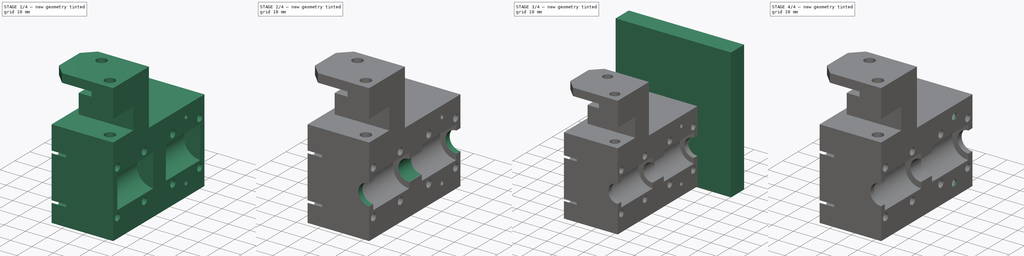
[diagram: build sequence overview — one tinted view per stage of 4, left to right]
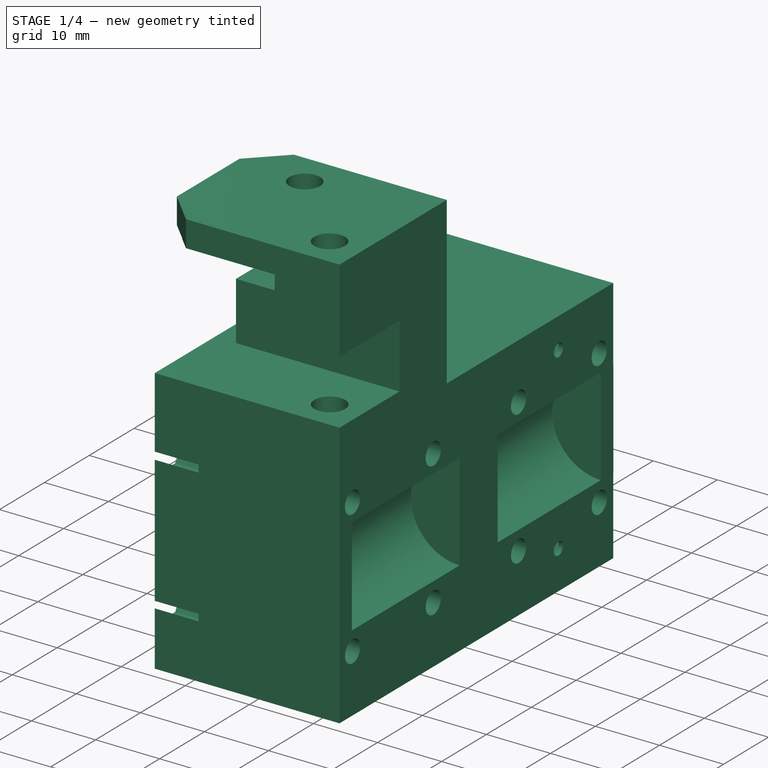
[diagram: stage 1 of 4 — iso view after this stage's code; geometry added in this stage tinted green]
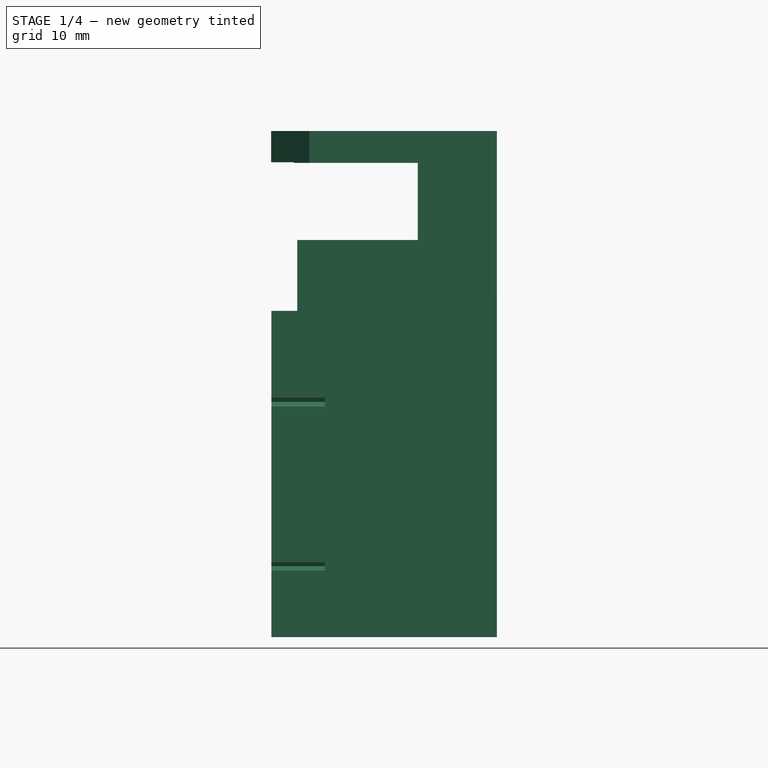
[diagram: stage 1 of 4 — front view after this stage's code; geometry added in this stage tinted green]
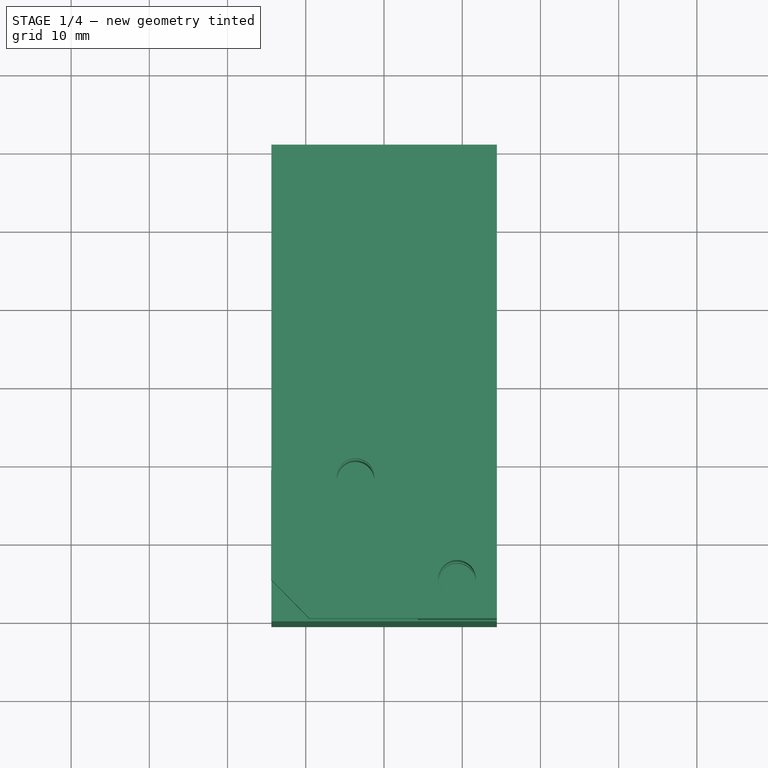
[diagram: stage 1 of 4 — top view after this stage's code; geometry added in this stage tinted green]
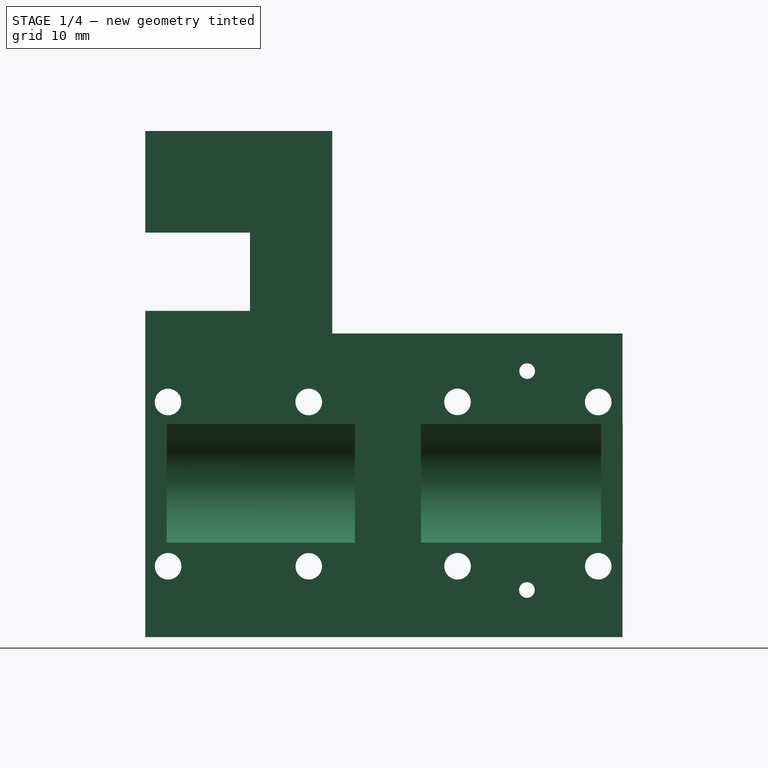
[diagram: stage 1 of 4 — right view after this stage's code; geometry added in this stage tinted green]
FCSTD DOCUMENT  (FreeCAD 1.0R38806 (Git))
Label: Y_carriage_right
License: All rights reserved
LicenseURL: http://en.wikipedia.org/wiki/All_rights_reserved
objects: PartDesign::Pocket×9, Sketcher::SketchObject×7, PartDesign::Pad×4, Part::Feature×1, PartDesign::FeatureBase×1, PartDesign::Body×1
note: 57 computed .brp shape members not serialized (recipe doc carries the construction recipe); baked Part::Feature solids carry a one-line shape summary decoded from their .brp

FEATURE [Part::Feature] Part__Feature  label="Y_carriage_right_001"
  shape: bbox 28.85 x 61 x 66.87 mm, 116 faces (baked)
FEATURE [PartDesign::FeatureBase] BaseFeature
  BaseFeature = -> Part__Feature
  Suppressed = false
FEATURE [Sketcher::SketchObject] Sketch
  ArcFitTolerance = 1e-06
  AttachmentSupport = -> [BaseFeature]
  FullyConstrained = false
  MakeInternals = false
  MapMode = 5
  Placement = pos=(-14.403,0,0) rot=(0.57735,-0.57735,-0.57735;2.0944rad)
  sketch-geometry (2):
    g0: Circle CenterX=-18.3109 CenterY=1.64536 CenterZ=0 NormalX=0 NormalY=0 NormalZ=1 AngleXU=0 Radius=1
    g1: Circle CenterX=-18.2779 CenterY=-26.3361 CenterZ=0 NormalX=0 NormalY=0 NormalZ=1 AngleXU=0 Radius=1
  constraints (2):
    c: Diameter(g0) = 2
    c: Diameter(g1) = 2
FEATURE [PartDesign::Pocket] Pocket
  BaseFeature = -> BaseFeature
  Direction = (1,0,0)
  Length = 5
  Length2 = 5
  Profile = -> Sketch
  ReferenceAxis = -> Sketch [N_Axis]
  Refine = true
  Suppressed = false
  Type = 1
FEATURE [Sketcher::SketchObject] Sketch001
  ArcFitTolerance = 1e-06
  AttachmentSupport = -> [Pocket]
  FullyConstrained = false
  MakeInternals = false
  MapMode = 5
  Placement = pos=(14.4238,0,0) rot=(0.57735,0.57735,0.57735;2.0944rad)
  sketch-geometry (12):
    g0: LineSegment StartX=-27.7506 StartY=-5.10089 StartZ=0 EndX=-30.6424 EndY=-5.10089 EndZ=0
    g1: LineSegment StartX=-30.6424 StartY=-5.10089 StartZ=0 EndX=-30.6424 EndY=-20.3024 EndZ=0
    g2: LineSegment StartX=-30.6424 StartY=-20.3024 StartZ=0 EndX=-27.7506 EndY=-20.3024 EndZ=0
    g3: LineSegment StartX=-27.7506 StartY=-20.3024 StartZ=0 EndX=-27.7506 EndY=-5.10089 EndZ=0
    g4: LineSegment StartX=-3.71419 StartY=-5.09504 StartZ=0 EndX=-3.71419 EndY=-20.3043 EndZ=0
    g5: LineSegment StartX=-3.71419 StartY=-20.3043 StartZ=0 EndX=4.74368 EndY=-20.3043 EndZ=0
    g6: LineSegment StartX=4.74368 StartY=-20.3043 StartZ=0 EndX=4.74368 EndY=-5.09504 EndZ=0
    g7: LineSegment StartX=4.74368 StartY=-5.09504 StartZ=0 EndX=-3.71419 EndY=-5.09504 EndZ=0
    g8: LineSegment StartX=27.7632 StartY=-5.09183 StartZ=0 EndX=27.7632 EndY=-20.3017 EndZ=0
    g9: LineSegment StartX=27.7632 StartY=-20.3017 StartZ=0 EndX=30.5266 EndY=-20.3017 EndZ=0
    g10: LineSegment StartX=30.5266 StartY=-20.3017 StartZ=0 EndX=30.5266 EndY=-5.09183 EndZ=0
    g11: LineSegment StartX=30.5266 StartY=-5.09183 StartZ=0 EndX=27.7632 EndY=-5.09183 EndZ=0
  constraints (24):
    c: Coincident(g0,g1)
    c: Coincident(g1,g2)
    c: Coincident(g2,g3)
    c: Coincident(g3,g0)
    c: Horizontal(g0)
    c: Horizontal(g2)
    c: Vertical(g1)
    c: Vertical(g3)
    c: Coincident(g4,g5)
    c: Coincident(g5,g6)
    c: Coincident(g6,g7)
    c: Coincident(g7,g4)
    c: Vertical(g4)
    c: Vertical(g6)
    c: Horizontal(g5)
    c: Horizontal(g7)
    c: Coincident(g8,g9)
    c: Coincident(g9,g10)
    c: Coincident(g10,g11)
    c: Coincident(g11,g8)
    c: Vertical(g8)
    c: Vertical(g10)
    c: Horizontal(g9)
    c: Horizontal(g11)
FEATURE [PartDesign::Pad] Pad
  BaseFeature = -> Pocket
  Direction = (1,0,0)
  Length = 10
  Length2 = 10
  Profile = -> Sketch001
  ReferenceAxis = -> Sketch001 [N_Axis]
  Refine = true
  Reversed = true
  Suppressed = false
  Type = 0
FEATURE [PartDesign::Pocket] Pocket001
  BaseFeature = -> Pad
  Direction = (0,0,1)
  Length = 26
  Length2 = 5
  Profile = -> Pad [Face101]
  Refine = true
  Suppressed = false
  Type = 0
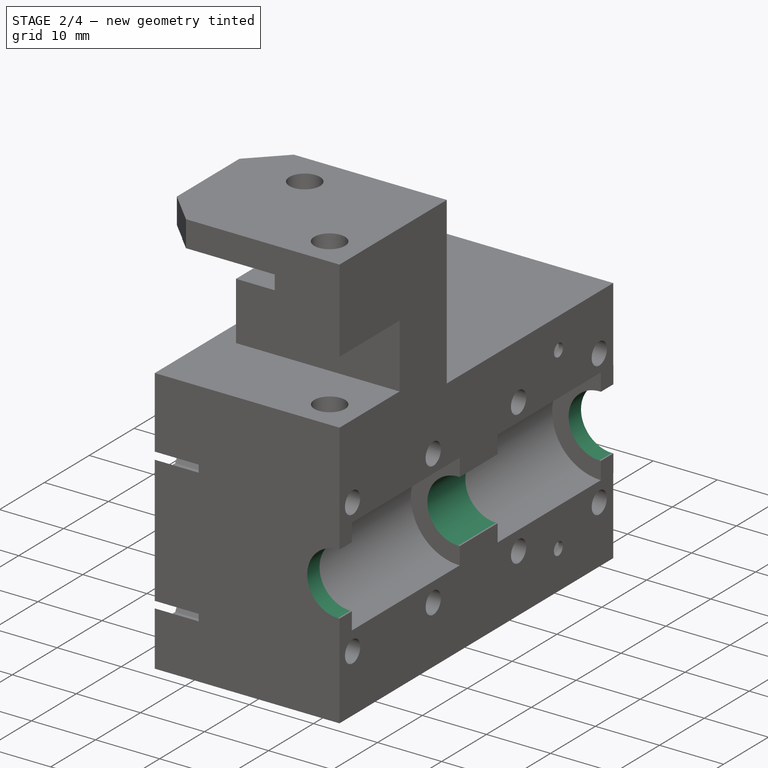
[diagram: stage 2 of 4 — iso view after this stage's code; geometry added in this stage tinted green]
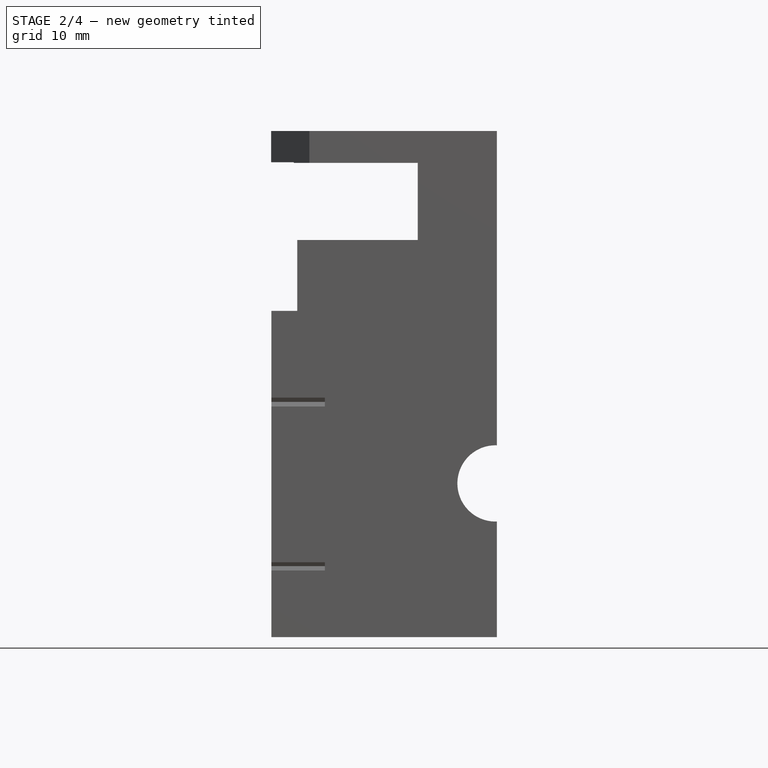
[diagram: stage 2 of 4 — front view after this stage's code; geometry added in this stage tinted green]
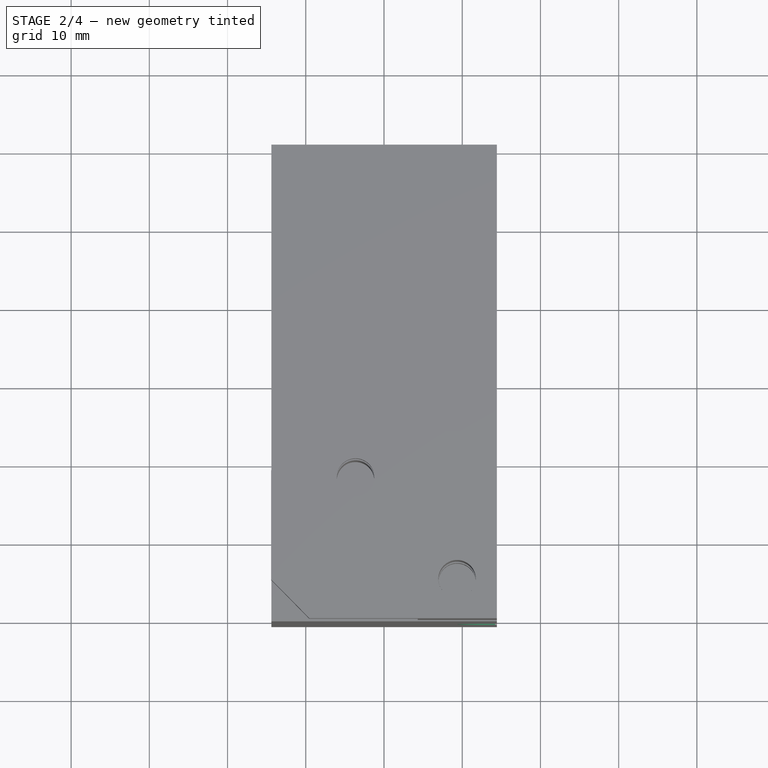
[diagram: stage 2 of 4 — top view after this stage's code; geometry added in this stage tinted green]
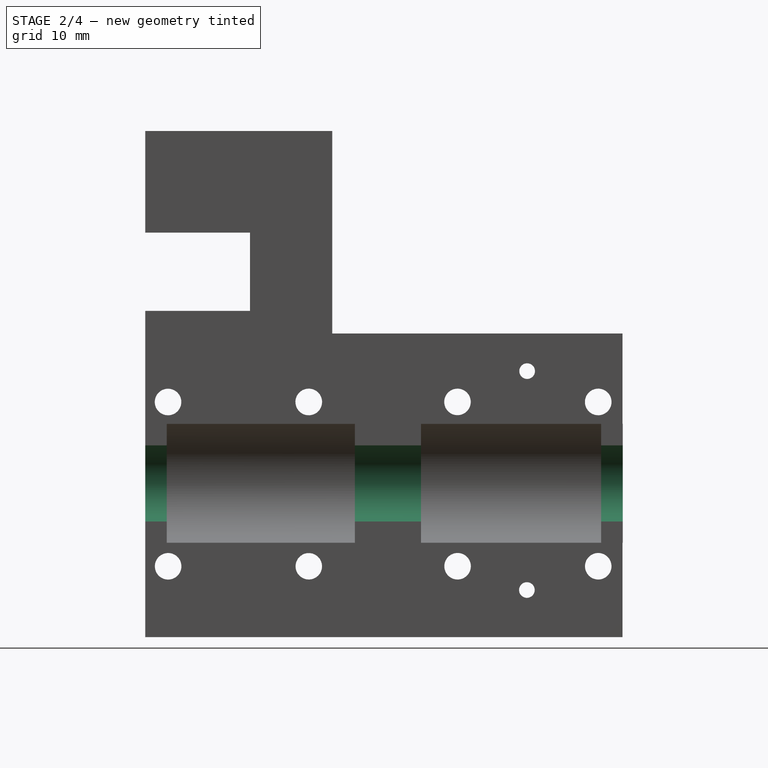
[diagram: stage 2 of 4 — right view after this stage's code; geometry added in this stage tinted green]
FEATURE [Sketcher::SketchObject] Sketch002
  ArcFitTolerance = 1e-06
  AttachmentSupport = -> [Pocket001]
  FullyConstrained = false
  MakeInternals = false
  MapMode = 5
  Placement = pos=(0,-30.5001,0) rot=(1,0,0;1.5708rad)
  sketch-geometry (1):
    g0: Circle CenterX=14.2545 CenterY=-12.7088 CenterZ=0 NormalX=0 NormalY=0 NormalZ=1 AngleXU=0 Radius=4.87299
FEATURE [PartDesign::Pocket] Pocket002
  BaseFeature = -> Pocket001
  Direction = (0,1,-2e-16)
  Length = 5
  Length2 = 5
  Profile = -> Sketch002
  ReferenceAxis = -> Sketch002 [N_Axis]
  Refine = true
  Suppressed = false
  Type = 1
FEATURE [Sketcher::SketchObject] Sketch003
  ArcFitTolerance = 1e-06
  AttachmentSupport = -> [Pocket002]
  FullyConstrained = false
  MakeInternals = false
  MapMode = 5
  Placement = pos=(0,-30.5001,0) rot=(1,0,0;1.5708rad)
  sketch-geometry (4):
    g0: LineSegment StartX=-31.2286 StartY=37.3175 StartZ=0 EndX=-31.2286 EndY=-45.1494 EndZ=0
    g1: LineSegment StartX=-31.2286 StartY=-45.1494 StartZ=0 EndX=30.6717 EndY=-45.1494 EndZ=0
    g2: LineSegment StartX=30.6717 StartY=-45.1494 StartZ=0 EndX=30.6717 EndY=37.3175 EndZ=0
    g3: LineSegment StartX=30.6717 StartY=37.3175 StartZ=0 EndX=-31.2286 EndY=37.3175 EndZ=0
  constraints (8):
    c: Coincident(g0,g1)
    c: Coincident(g1,g2)
    c: Coincident(g2,g3)
    c: Coincident(g3,g0)
    c: Vertical(g0)
    c: Vertical(g2)
    c: Horizontal(g1)
    c: Horizontal(g3)
FEATURE [PartDesign::Pad] Pad001
  BaseFeature = -> Pocket002
  Direction = (0,-1,2e-16)
  Length = 10
  Length2 = 10
  Profile = -> Sketch003
  ReferenceAxis = -> Sketch003 [N_Axis]
  Refine = true
  Suppressed = false
  Type = 0
FEATURE [PartDesign::Pocket] Pocket003
  BaseFeature = -> Pad001
  Direction = (0,1,0)
  Length = 10
  Length2 = 5
  Profile = -> Pad001 [Face133]
  Refine = true
  Suppressed = false
  Type = 0
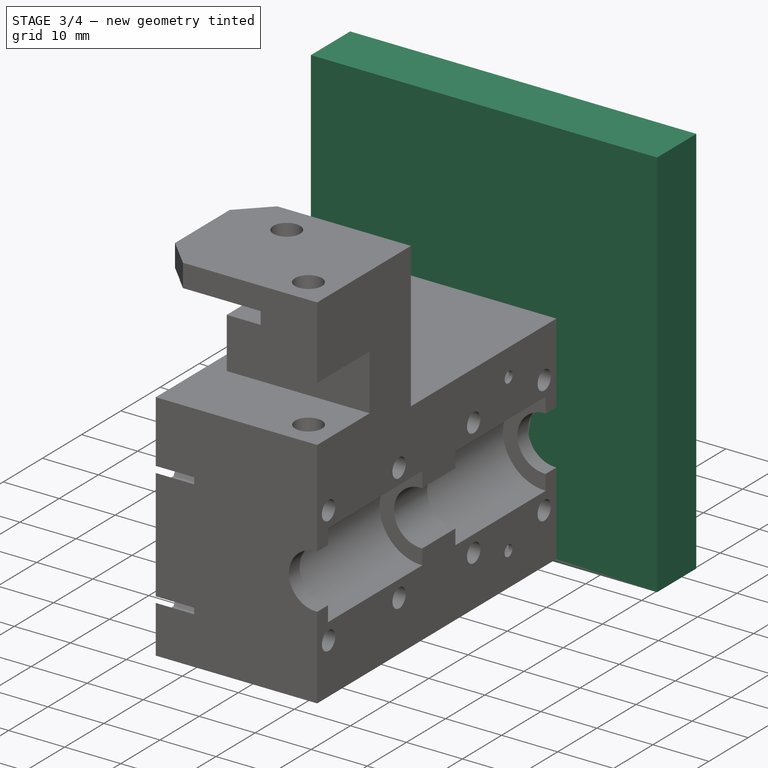
[diagram: stage 3 of 4 — iso view after this stage's code; geometry added in this stage tinted green]
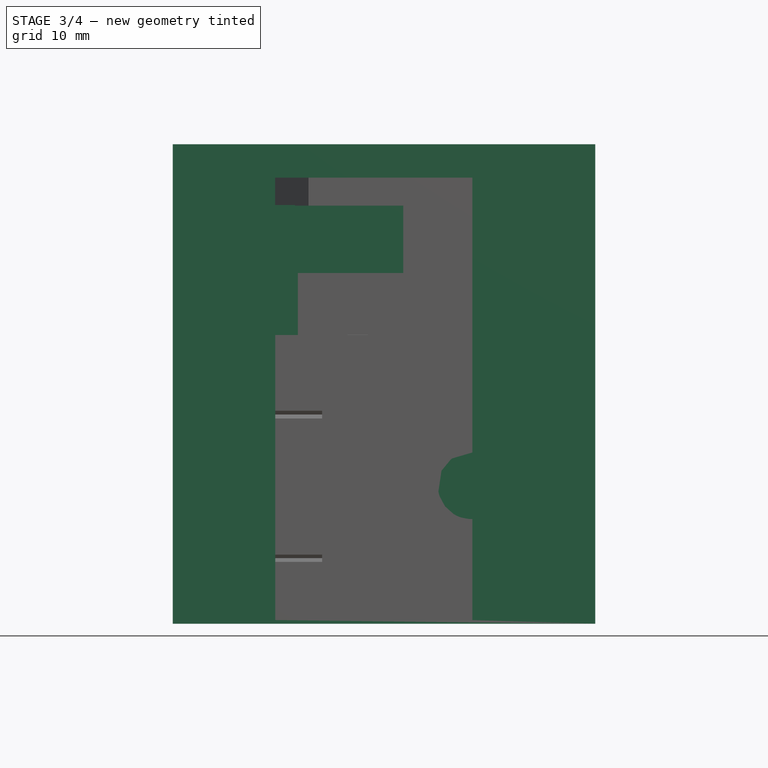
[diagram: stage 3 of 4 — front view after this stage's code; geometry added in this stage tinted green]
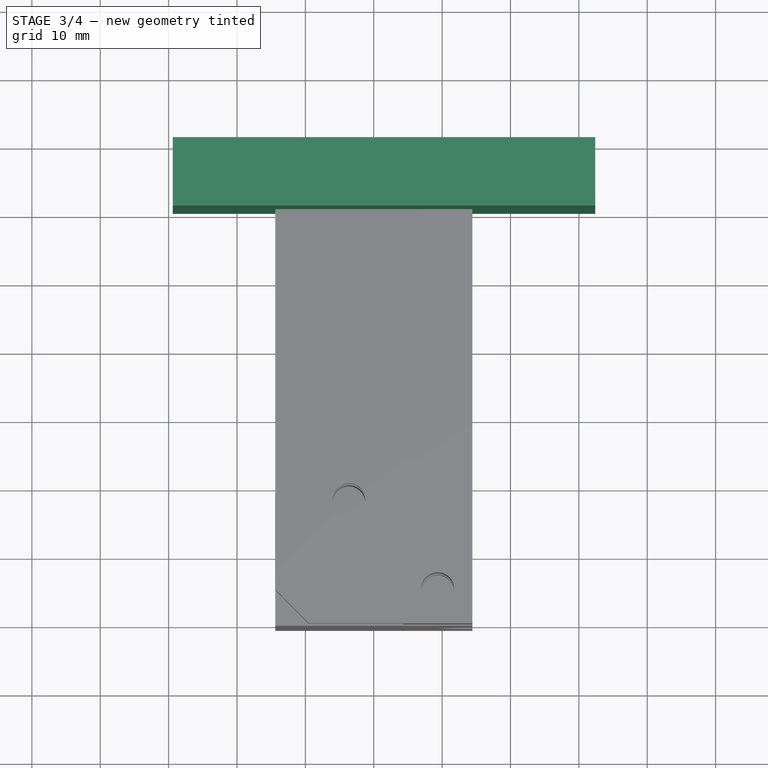
[diagram: stage 3 of 4 — top view after this stage's code; geometry added in this stage tinted green]
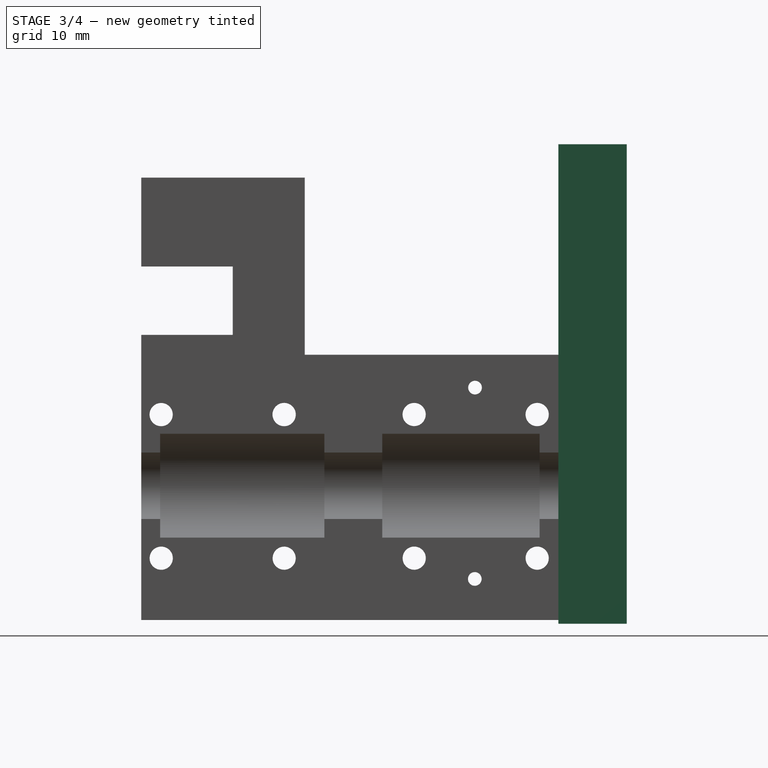
[diagram: stage 3 of 4 — right view after this stage's code; geometry added in this stage tinted green]
FEATURE [Sketcher::SketchObject] Sketch004
  ArcFitTolerance = 1e-06
  AttachmentSupport = -> [Pocket003]
  FullyConstrained = false
  MakeInternals = false
  MapMode = 5
  Placement = pos=(14.4238,0,0) rot=(0.57735,0.57735,0.57735;2.0944rad)
  sketch-geometry (4):
    g0: LineSegment StartX=-38.3028 StartY=35.3214 StartZ=0 EndX=-38.3028 EndY=-36.165 EndZ=0
    g1: LineSegment StartX=-38.3028 StartY=-36.165 StartZ=0 EndX=35.47 EndY=-36.165 EndZ=0
    g2: LineSegment StartX=35.47 StartY=-36.165 StartZ=0 EndX=35.47 EndY=35.3214 EndZ=0
    g3: LineSegment StartX=35.47 StartY=35.3214 StartZ=0 EndX=-38.3028 EndY=35.3214 EndZ=0
  constraints (8):
    c: Coincident(g0,g1)
    c: Coincident(g1,g2)
    c: Coincident(g2,g3)
    c: Coincident(g3,g0)
    c: Vertical(g0)
    c: Vertical(g2)
    c: Horizontal(g1)
    c: Horizontal(g3)
FEATURE [PartDesign::Pad] Pad002
  BaseFeature = -> Pocket003
  Direction = (1,0,0)
  Length = 10
  Length2 = 10
  Profile = -> Sketch004
  ReferenceAxis = -> Sketch004 [N_Axis]
  Refine = true
  Suppressed = false
  Type = 0
FEATURE [PartDesign::Pocket] Pocket004
  BaseFeature = -> Pad002
  Direction = (-1,0,0)
  Length = 10
  Length2 = 5
  Profile = -> Pad002 [Face140]
  Refine = true
  Suppressed = false
  Type = 0
FEATURE [Sketcher::SketchObject] Sketch005
  ArcFitTolerance = 1e-06
  AttachmentSupport = -> [Pocket004]
  FullyConstrained = false
  MakeInternals = false
  MapMode = 5
  Placement = pos=(1.4e-15,30.4999,-6e-16) rot=(0,0.707107,0.707107;3.14159rad)
  sketch-geometry (4):
    g0: LineSegment StartX=-32.3991 StartY=37.2442 StartZ=0 EndX=-32.3991 EndY=-32.8972 EndZ=0
    g1: LineSegment StartX=-32.3991 StartY=-32.8972 StartZ=0 EndX=29.4034 EndY=-32.8972 EndZ=0
    g2: LineSegment StartX=29.4034 StartY=-32.8972 StartZ=0 EndX=29.4034 EndY=37.2442 EndZ=0
    g3: LineSegment StartX=29.4034 StartY=37.2442 StartZ=0 EndX=-32.3991 EndY=37.2442 EndZ=0
  constraints (8):
    c: Coincident(g0,g1)
    c: Coincident(g1,g2)
    c: Coincident(g2,g3)
    c: Coincident(g3,g0)
    c: Vertical(g0)
    c: Vertical(g2)
    c: Horizontal(g1)
    c: Horizontal(g3)
FEATURE [PartDesign::Pad] Pad003
  BaseFeature = -> Pocket004
  Direction = (0,1,-2e-16)
  Length = 10
  Length2 = 10
  Profile = -> Sketch005
  ReferenceAxis = -> Sketch005 [N_Axis]
  Refine = true
  Suppressed = false
  Type = 0
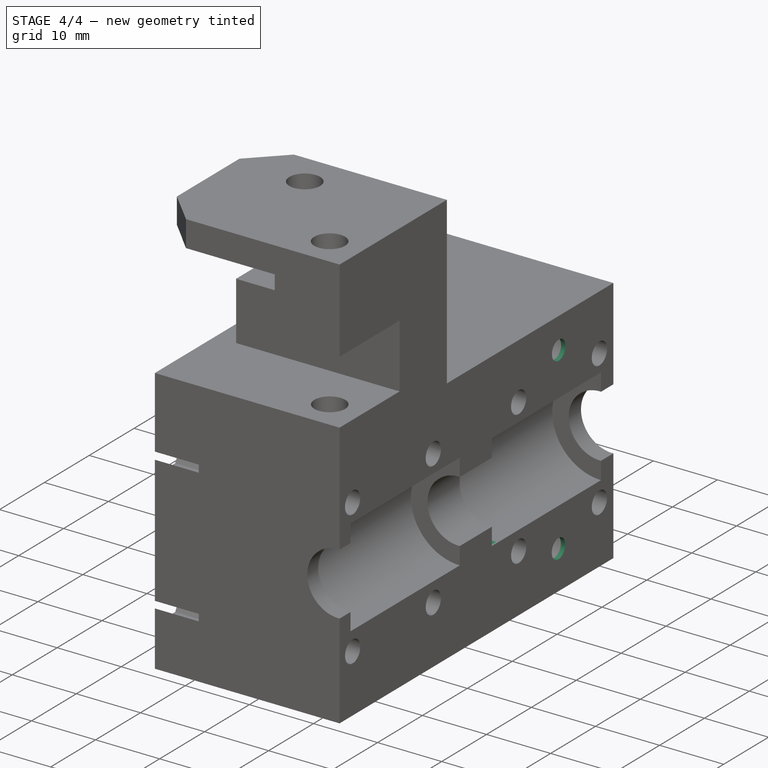
[diagram: stage 4 of 4 — iso view after this stage's code; geometry added in this stage tinted green]
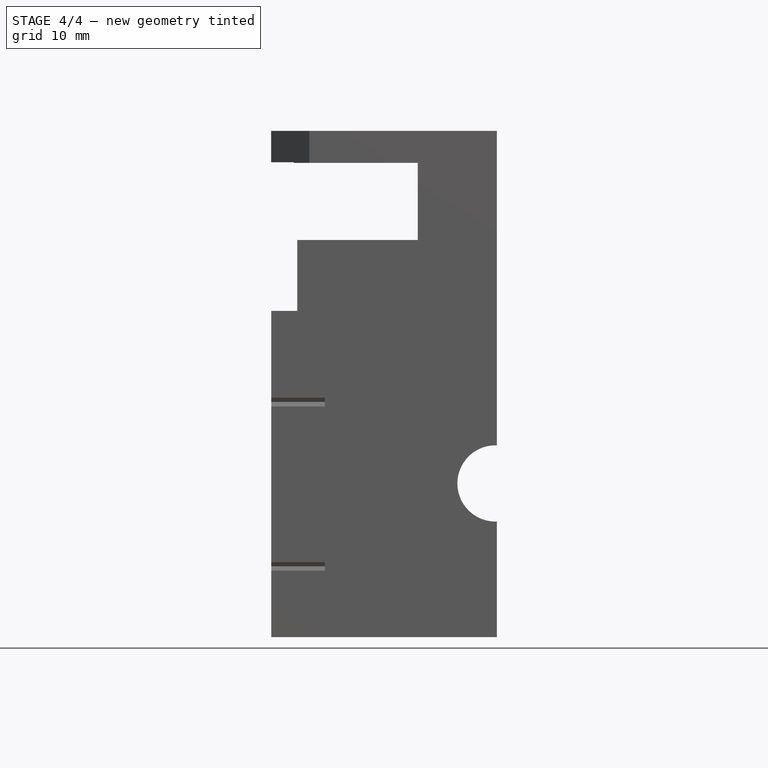
[diagram: stage 4 of 4 — front view after this stage's code; geometry added in this stage tinted green]
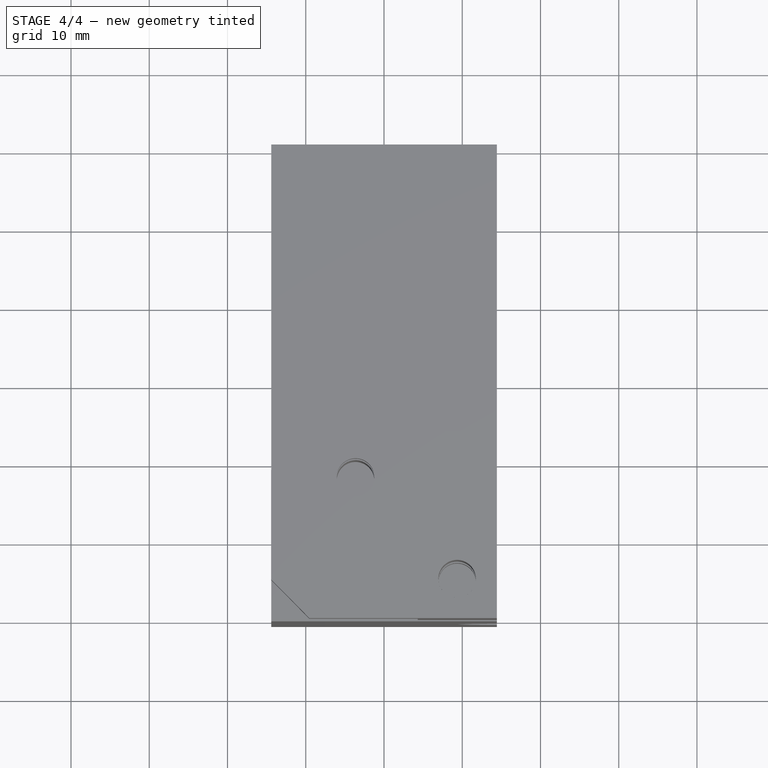
[diagram: stage 4 of 4 — top view after this stage's code; geometry added in this stage tinted green]
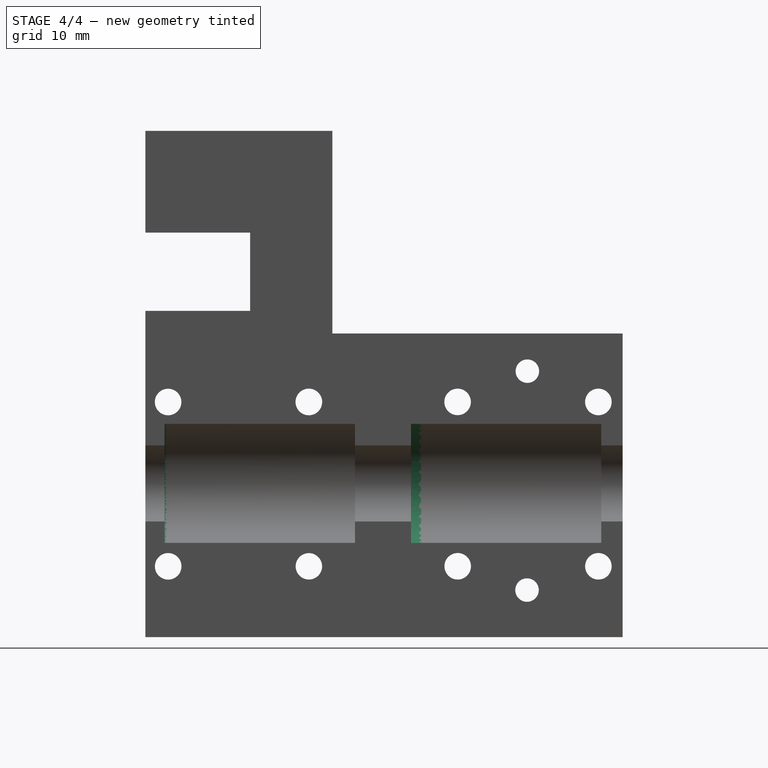
[diagram: stage 4 of 4 — right view after this stage's code; geometry added in this stage tinted green]
FEATURE [PartDesign::Pocket] Pocket005
  BaseFeature = -> Pad003
  Direction = (0,-1,0)
  Length = 10
  Length2 = 5
  Profile = -> Pad003 [Face125]
  Refine = true
  Suppressed = false
  Type = 0
FEATURE [PartDesign::Pocket] Pocket006
  BaseFeature = -> Pocket005
  Direction = (0,-1,0)
  Length = 1.3
  Length2 = 5
  Profile = -> Pocket005 [Face18]
  Refine = true
  Suppressed = false
  Type = 0
FEATURE [PartDesign::Pocket] Pocket007
  BaseFeature = -> Pocket006
  Direction = (0,-1,0)
  Length = 0.3
  Length2 = 5
  Profile = -> Pocket006 [Face23]
  Refine = true
  Suppressed = false
  Type = 0
FEATURE [Sketcher::SketchObject] Sketch006
  ArcFitTolerance = 1e-06
  AttachmentSupport = -> [Pocket007]
  FullyConstrained = false
  MakeInternals = false
  MapMode = 5
  Placement = pos=(-14.403,0,0) rot=(0.57735,-0.57735,-0.57735;2.0944rad)
  sketch-geometry (2):
    g0: Circle CenterX=-18.324 CenterY=1.63921 CenterZ=0 NormalX=0 NormalY=0 NormalZ=1 AngleXU=0 Radius=1.5
    g1: Circle CenterX=-18.28 CenterY=-26.3378 CenterZ=0 NormalX=0 NormalY=0 NormalZ=1 AngleXU=0 Radius=1.5
  constraints (2):
    c: Diameter(g0) = 3
    c: Diameter(g1) = 3
FEATURE [PartDesign::Pocket] Pocket008
  BaseFeature = -> Pocket007
  Direction = (1,0,0)
  Length = 98
  Length2 = 5
  Profile = -> Sketch006
  ReferenceAxis = -> Sketch006 [N_Axis]
  Refine = true
  Suppressed = false
  Type = 0
FEATURE [PartDesign::Body] Body
  AllowCompound = false
  BaseFeature = -> Part__Feature
  Group = -> [BaseFeature,Sketch,Pocket,Sketch001,Pad,Pocket001,Sketch002,Pocket002,Sketch003,Pad001,Pocket003,Sketch004,Pad002,Pocket004,Sketch005,Pad003,Pocket005,Pocket006,Pocket007,Sketch006,Pocket008]
  Origin = -> Origin
  Tip = -> Pocket008
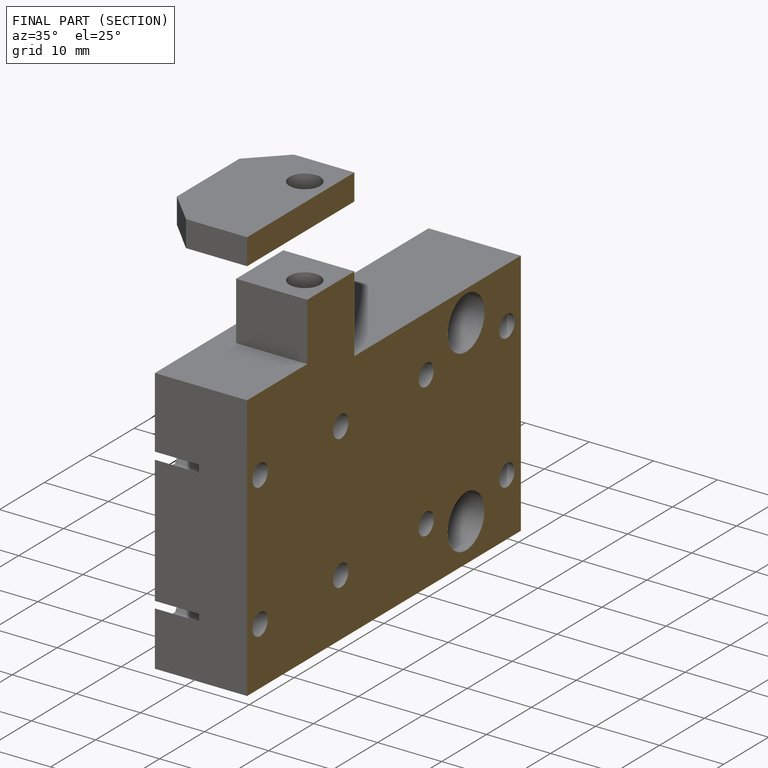
[diagram: finished part — half-section view (interior)]
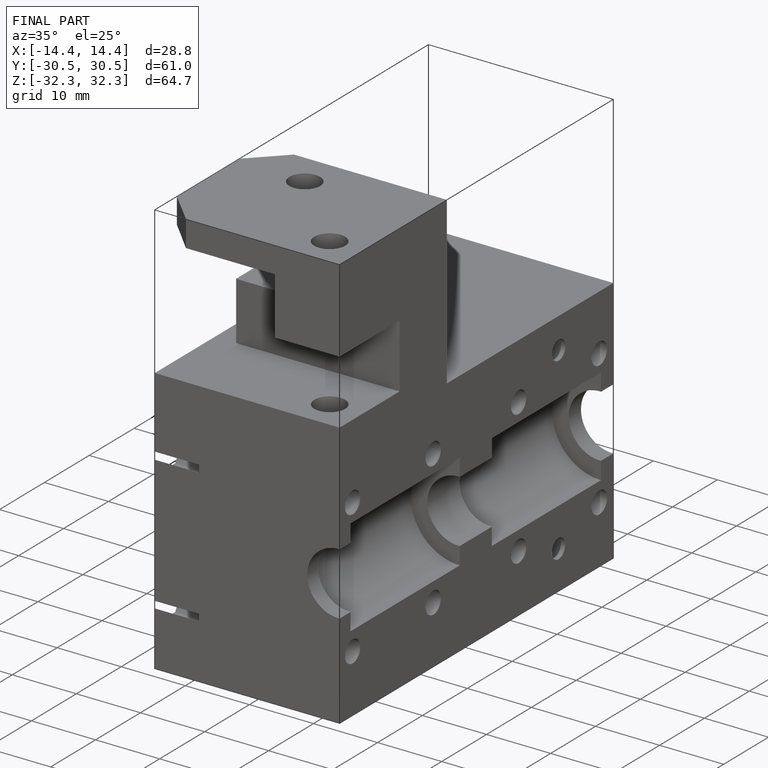
[diagram: finished part — iso view with bounding-box wireframe]
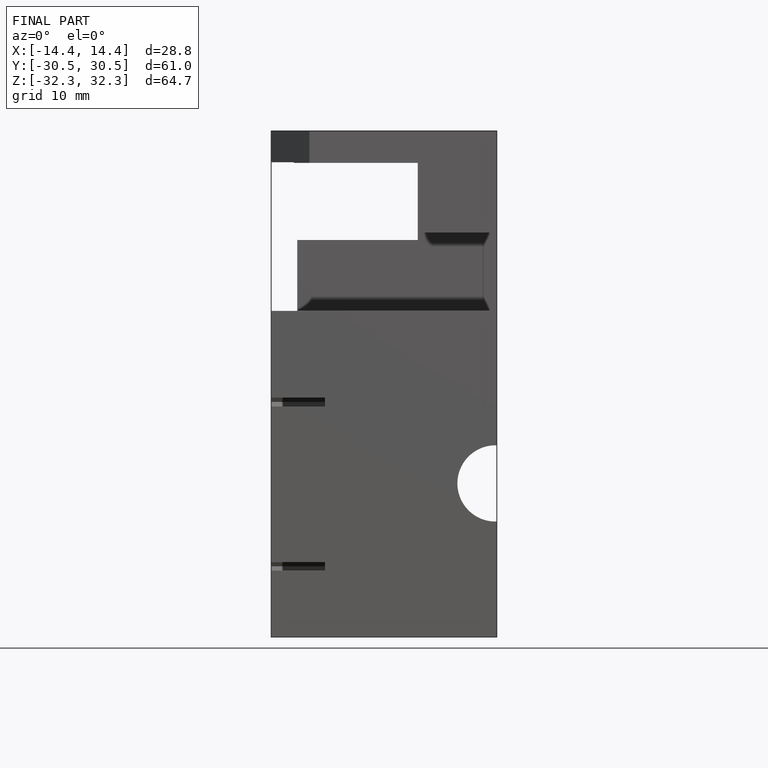
[diagram: finished part — front view with bounding-box wireframe]
